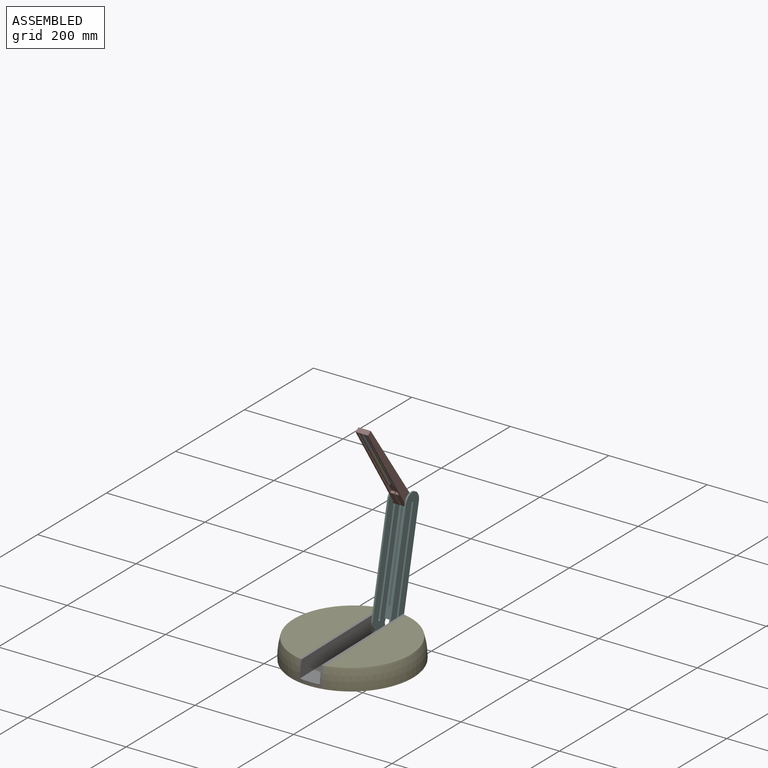
[diagram: assembled view]
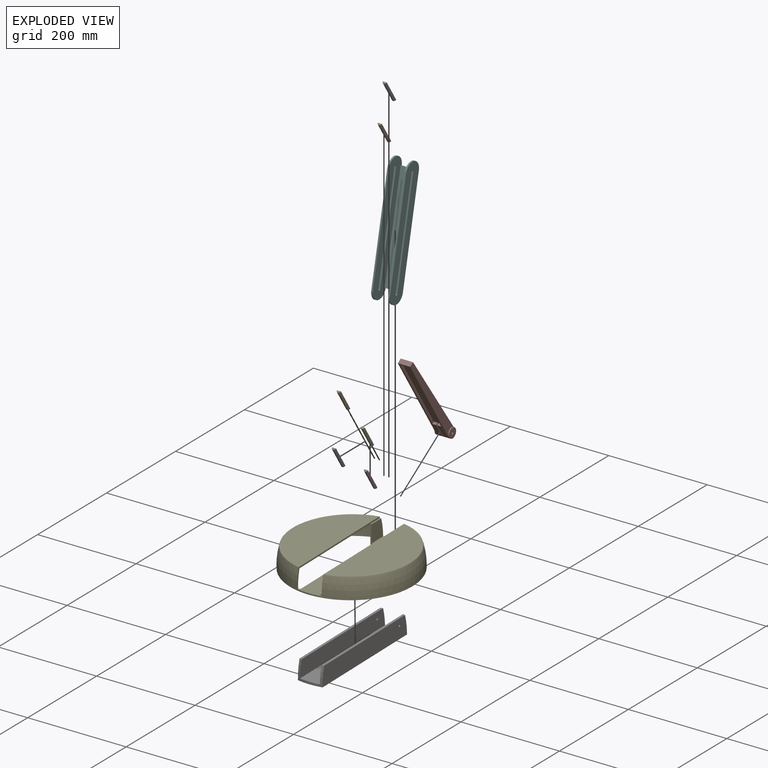
[diagram: exploded view]
GUIDED TOUR — MATED ASSEMBLY WITH SUBASSEMBLIES (Onshape document d21befe834926958a13e155d, AutoMate assembly d21befe834926958a13e155d_3634766d69a7f869ba85228c_aaea73f3850d54b94019fa1b_default)

This assembly has 14 component occurrences arranged in 10 top-level units: 9 individual components plus 1 subassembly (S0). The tour has two levels: first the top level, where each subassembly is treated as one rigid unit; then each subassembly is toured internally in its own section (nesting deeper than one subassembly level is flattened into its subassembly's section).

Components are labeled P0..P13 across the whole record; subassembly units are labeled S0..S0. A mate is a constraint between two units; its type names the relative motion it leaves free:
  FASTENED — locks the two components together rigidly (no relative motion),
  REVOLUTE — leaves rotation about the listed axis free (a hinge).
Axis/direction vectors are unit vectors and 'through' points are millimeter coordinates, both in the assembly's world frame.

TOP-LEVEL MATES (between units; each subassembly's internal mates are listed in its own section)
  1. FASTENED "Fastened 1": P6 <-> S0, direction (0.000, 0.015, -1.000) through (-1.24, -427.21, -79.84) mm
  2. FASTENED "Fastened 12": P1 <-> P12, direction (0.000, -0.544, 0.839) through (-6.74, -339.71, 236.51) mm
  3. FASTENED "Fastened 9": P3 <-> P7, direction (0.000, 0.839, 0.544) through (7.26, -394.10, 320.43) mm
  4. FASTENED "Fastened 11": P12 <-> P0, direction (0.000, -0.544, 0.839) through (-6.74, -366.90, 278.47) mm
  5. FASTENED "Fastened 14": P10 <-> P2, direction (0.000, -0.544, 0.839) through (3.26, -341.14, 235.59) mm
  6. REVOLUTE "Revolute 1": P6 <-> P5, axis (1.000, 0.000, 0.000) through (-21.48, -326.18, -53.54) mm
  7. REVOLUTE "Revolute 2": P7 <-> P5, axis (1.000, 0.000, 0.000) through (13.26, -279.77, 153.22) mm
  8. FASTENED "Fastened 10": P0 <-> P7, direction (0.000, 0.839, 0.544) through (-10.74, -394.10, 320.43) mm
  9. FASTENED "Fastened 13": P2 <-> P3, direction (0.000, -0.544, 0.839) through (3.26, -368.33, 277.55) mm

TOP-LEVEL ASSEMBLY ORDER
  1. P6 — the base component [order heuristic]
  2. S0 — core [order heuristic]
  3. P2 [order verified]
  4. P12 [order verified]
  5. P10 [order verified]
  6. P3 [order verified]
  7. P0 [order verified]
  8. P1 [order verified]
  9. P5 [order verified]
  10. P7 [order verified]
Order-tag legend:
  [order verified] — this step's position reverses a verified removal order: the component was checked to insert without passing through the ones already placed.
  [order heuristic] — the first 2 components form the assembly's core: parts whose collision-free extraction could not be verified, listed in mate-graph order.

Of the 14 component occurrences, 9 carry the full construction recipe — the FeatureScript program that regenerates the part's solid from scratch; the rest are supplied as boundary geometry only. Each toured unit is shown spotlighted twice — assembled, then exploded with a leader line back to its socket (green = recipe-attached component, orange = geometry-only, blue = subassembly unit; the rest desaturated gray).
NOTE — document 2 of 2 of this assembly tour. The two overview renders and the header above are repeated from document 1; the component sections below continue where the previous document stopped.
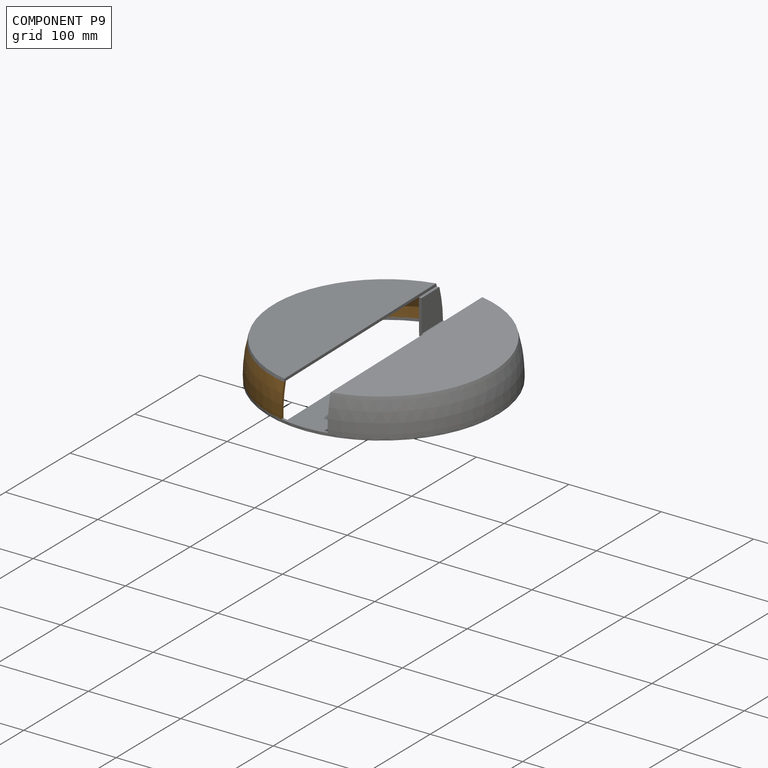
[diagram: component P9 — assembled]
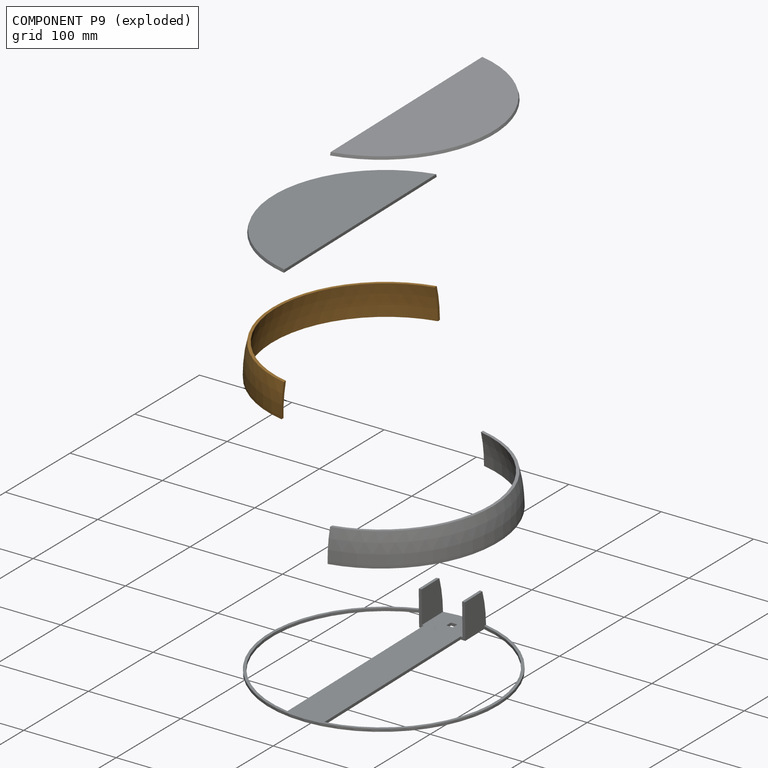
[diagram: component P9 — exploded]
COMPONENT P9 — geometry summary (no construction recipe available for this part):
  bounding box: 244.9 x 100.9 x 35.0 mm
  B-rep topology: 1 solid, 7 faces, 30 edges
  volume: 35389 mm^3 (4% of its bounding box)
  symmetry: mirror-symmetric across its y mid-plane
Held by: FASTENED mate "Fastened 4" to P8; FASTENED mate "Fastened 1" to P11; FASTENED mate "Fastened 4" to P8; FASTENED mate "Fastened 1" to P11.
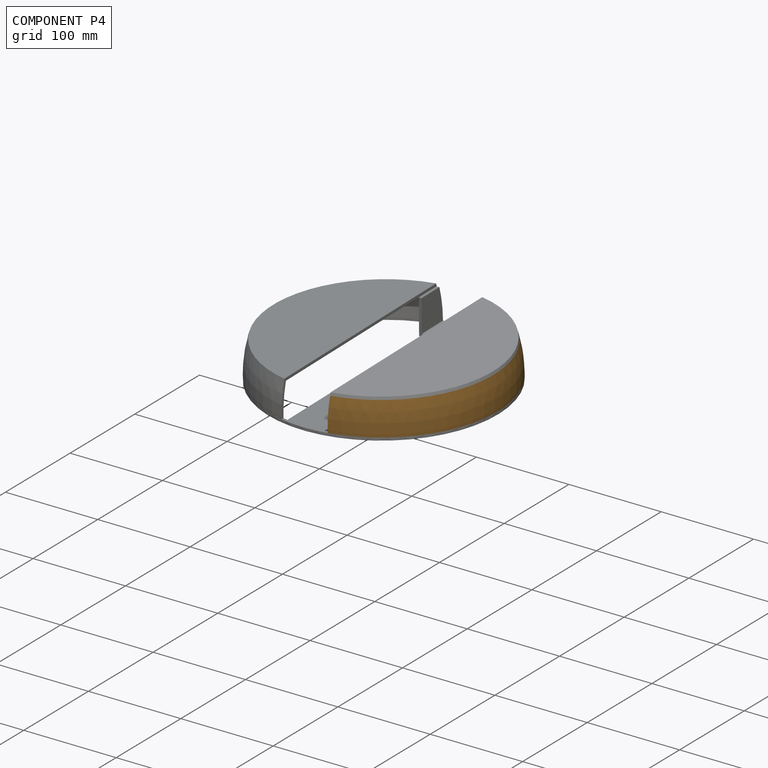
[diagram: component P4 — assembled]
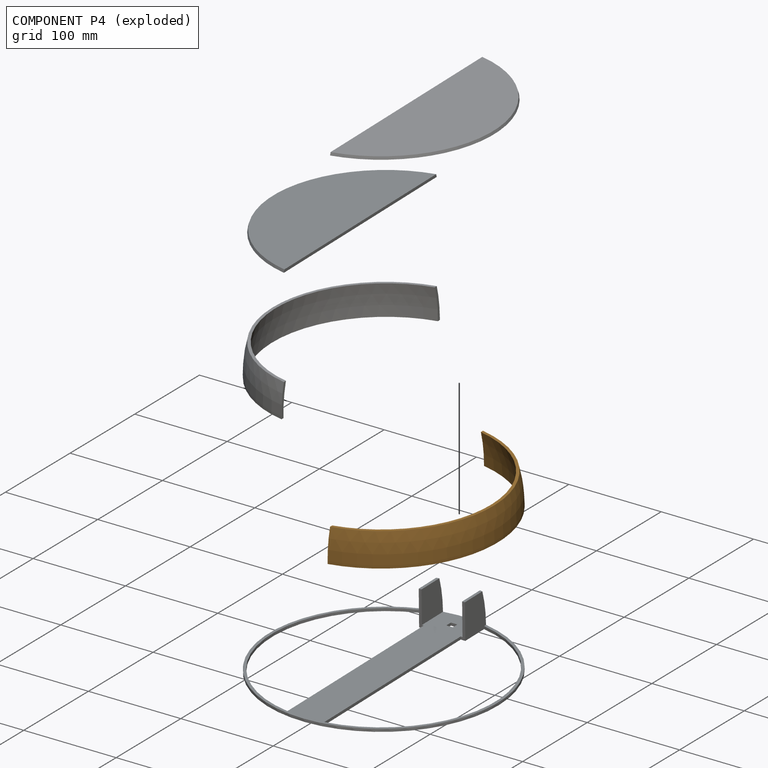
[diagram: component P4 — exploded]
COMPONENT P4 — geometry summary (no construction recipe available for this part):
  bounding box: 244.9 x 100.9 x 35.0 mm
  B-rep topology: 1 solid, 7 faces, 30 edges
  volume: 35389 mm^3 (4% of its bounding box)
  symmetry: mirror-symmetric across its y mid-plane
Held by: FASTENED mate "Fastened 3" to P8; FASTENED mate "Fastened 2" to P13; FASTENED mate "Fastened 2" to P13; FASTENED mate "Fastened 3" to P8.
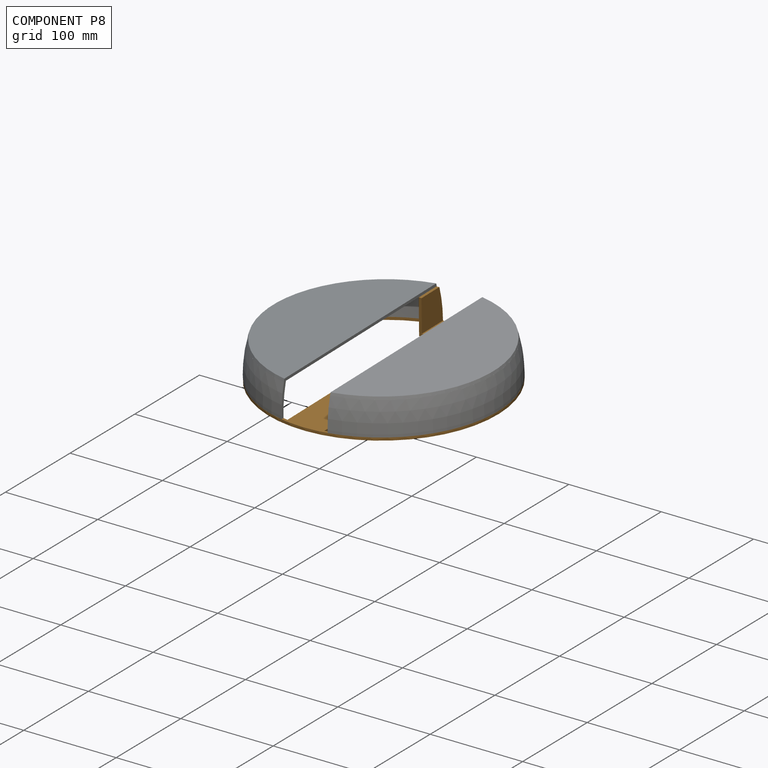
[diagram: component P8 — assembled]
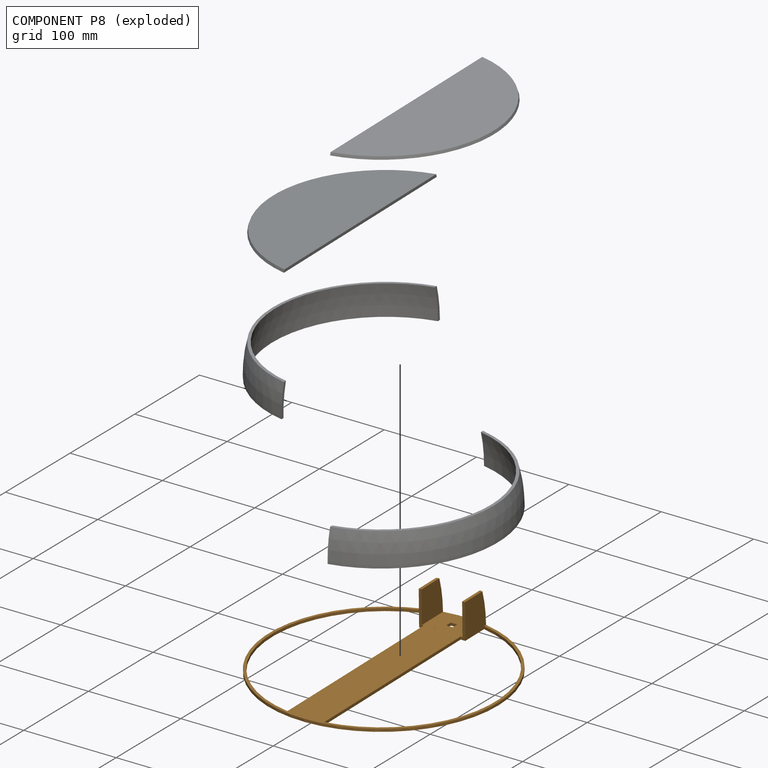
[diagram: component P8 — exploded]
COMPONENT P8 — geometry summary (no construction recipe available for this part):
  bounding box: 250.0 x 250.0 x 38.0 mm
  B-rep topology: 1 solid, 21 faces, 118 edges
  volume: 43326 mm^3 (2% of its bounding box)
  symmetry: mirror-symmetric across its x mid-plane
Held by: FASTENED mate "Fastened 3" to P4; FASTENED mate "Fastened 4" to P9; FASTENED mate "Fastened 4" to P9; FASTENED mate "Fastened 3" to P4.
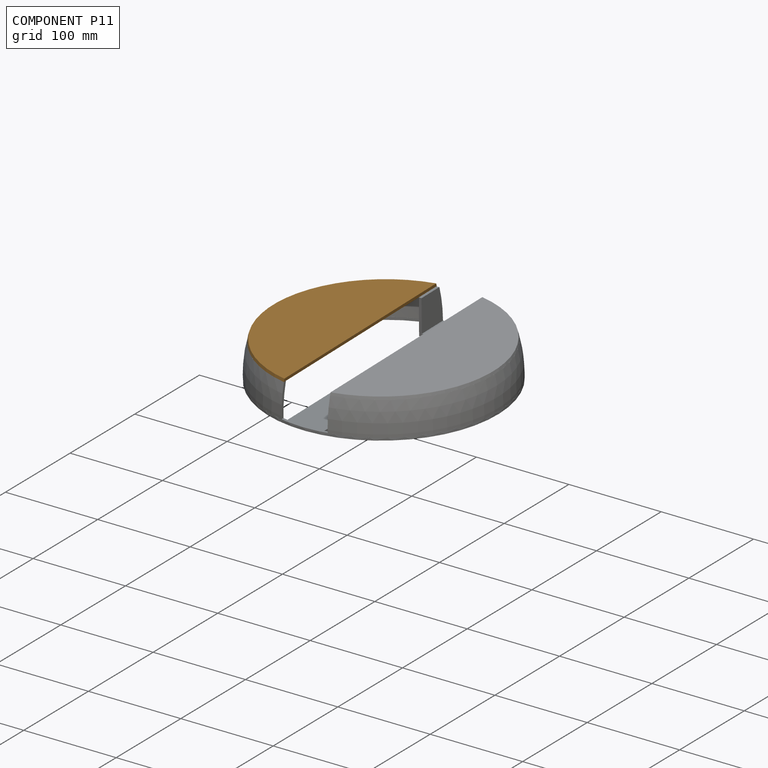
[diagram: component P11 — assembled]
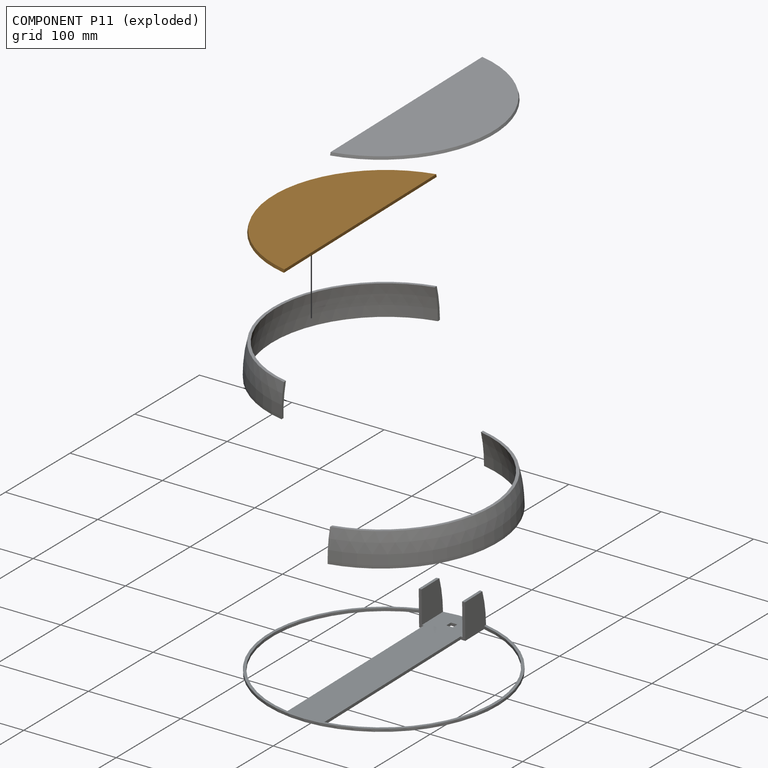
[diagram: component P11 — exploded]
COMPONENT P11 — geometry summary (no construction recipe available for this part):
  bounding box: 236.4 x 96.0 x 3.0 mm
  B-rep topology: 1 solid, 4 faces, 12 edges
  volume: 50406 mm^3 (74% of its bounding box)
  symmetry: 2-fold rotationally symmetric about the x axis; mirror-symmetric across its y mid-plane, z mid-plane
Held by: FASTENED mate "Fastened 1" to P9; FASTENED mate "Fastened 1" to P9.
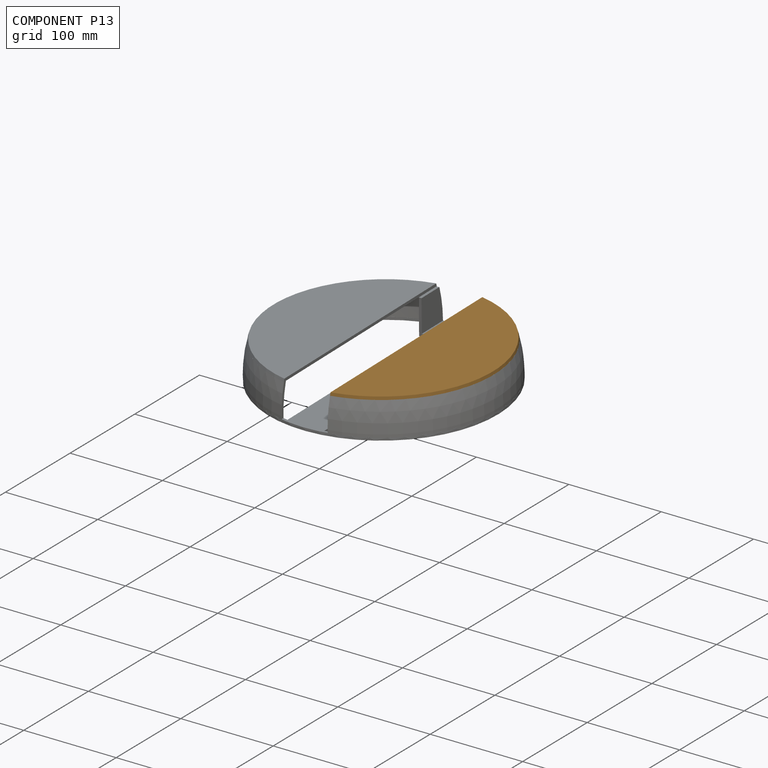
[diagram: component P13 — assembled]
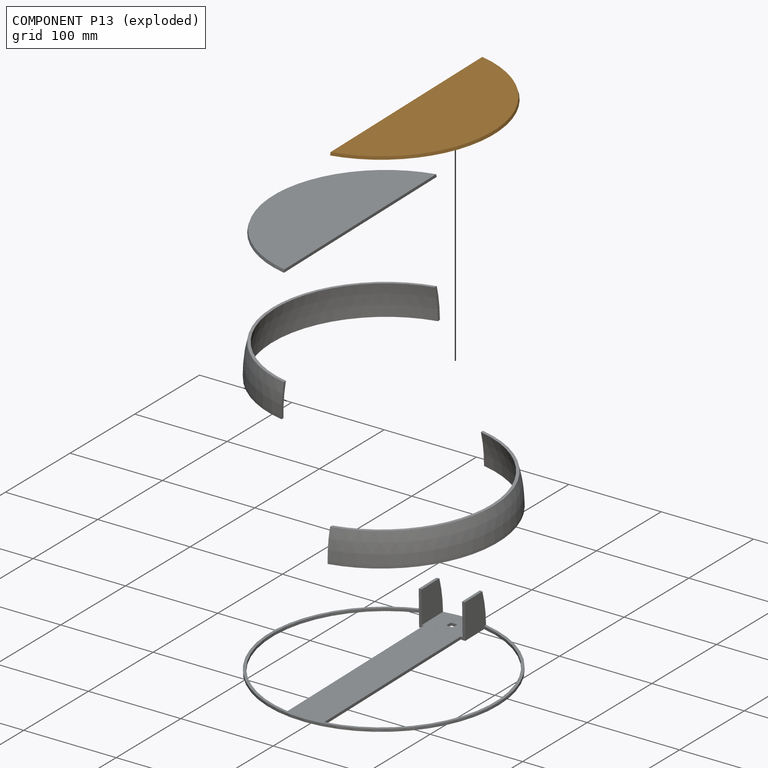
[diagram: component P13 — exploded]
COMPONENT P13 — geometry summary (no construction recipe available for this part):
  bounding box: 236.4 x 96.0 x 3.0 mm
  B-rep topology: 1 solid, 4 faces, 12 edges
  volume: 50406 mm^3 (74% of its bounding box)
  symmetry: 2-fold rotationally symmetric about the x axis; mirror-symmetric across its y mid-plane, z mid-plane
Held by: FASTENED mate "Fastened 2" to P4; FASTENED mate "Fastened 2" to P4.
PROVENANCE & LICENSES
Assembly (occurrences, transforms, mates, per-part STEP geometry): AutoMate dataset, Zenodo record 7776208, CC0.
Construction recipes: CADFS (HuggingFace VladPyatov/CADFS, CC-BY-4.0, layered over the ABC dataset), FeatureScript reconstruction programs keyed by ABC model id.
Join: ABC meta listings map ABC model id -> Onshape documentId; within a shared document, parts are matched by geometric signature (bounding-box dims + volume at 0.1% relative tolerance, exact B-rep face/solid counts).
Verification: 9 of this assembly's 14 components carry a recipe attachment, and every attachment is mesh-verified: the CADFS STEP and the AutoMate member STEP were compared as meshes in their shared local frame (symmetric sampled-point-to-mesh distance); worst across the 9 attachments: below the mesh-comparison resolution (tessellation chordal tolerance ~0.387 mm) on a 258 mm part.
Renders: orthographic iso camera (az 35 / el 25); the floor grid conveys scale (grid pitch printed in each image; no ruler). In the exploded view each component is displaced by its stored offset vector: the offsets alone carry the explosion direction (mate normal/axis signs are not orientation cues and do not encode it), and separation distances are assigned per mate-chain, not proportionally to assembly-order depth.
